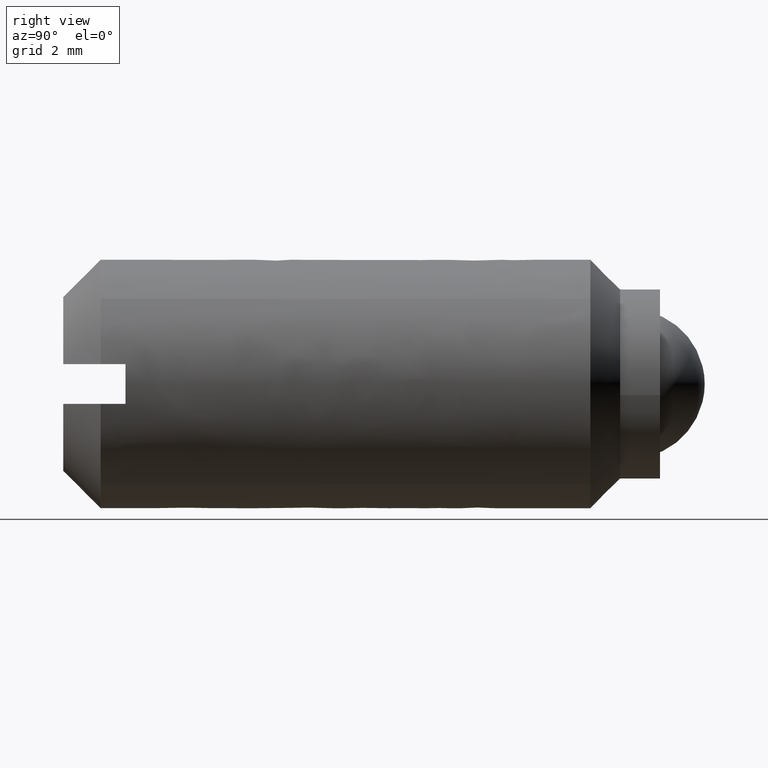
[diagram: clean part render]
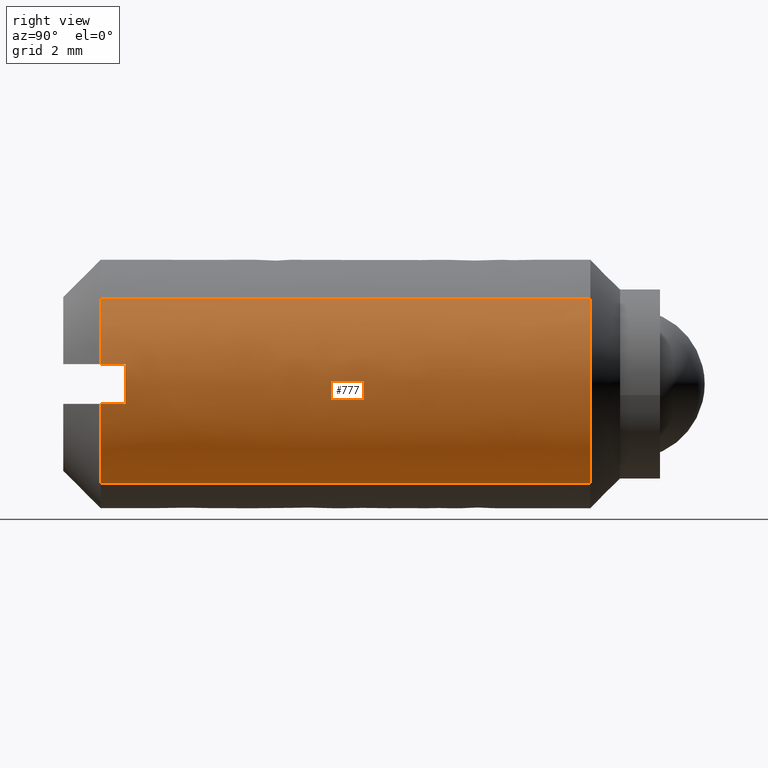
[diagram: same view with one face highlighted and labeled with its STEP entity id]
A machine part, right view. The second image highlights one B-rep face of the part: STEP entity #777.
In plain terms, the highlighted face is a freeform B-spline surface patch.
Its self-contained STEP definition (entity closure, byte-faithful):
#487=CARTESIAN_POINT('',(1.818315486528456,-2.299999999999970,1.715729813068122));
#488=VERTEX_POINT('',#487);
#502=CARTESIAN_POINT('',(1.494303351258331,-2.299999999999954,-2.004259837051412));
#503=VERTEX_POINT('',#502);
#504=CARTESIAN_POINT('',(1.494303351258332,-2.299999999999953,-2.004259837051412));
#505=CARTESIAN_POINT('',(2.500000000000000,-2.300000000000000,-1.254449486241988));
#506=CARTESIAN_POINT('',(2.500000000000000,-2.300000000000000,-8.511014E-016));
#507=CARTESIAN_POINT('',(2.500000000000000,-2.300000000000000,0.993286470697336));
#508=CARTESIAN_POINT('',(1.818315486528456,-2.299999999999971,1.715729813068123));
#516=(BOUNDED_CURVE()B_SPLINE_CURVE(2,(#504,#505,#506,#507,#508),.UNSPECIFIED.,.F.,.U.)B_SPLINE_CURVE_WITH_KNOTS((3,2,3),(0.103121803616288,0.250000000000000,0.370620956215219),.UNSPECIFIED.)CURVE()GEOMETRIC_REPRESENTATION_ITEM()RATIONAL_B_SPLINE_CURVE((0.858039628780873,0.827921489150641,1.0,0.858683759511071,0.853733119474259))REPRESENTATION_ITEM(''));
#517=EDGE_CURVE('',#503,#488,#516,.T.);
#619=CARTESIAN_POINT('',(1.494304036467052,-12.150000000000000,-2.004259374637578));
#620=VERTEX_POINT('',#619);
#621=CARTESIAN_POINT('',(1.494303351258331,-2.299999999999954,-2.004259837051412));
#622=CARTESIAN_POINT('',(1.494304036467052,-12.150000000000000,-2.004259374637578));
#623=QUASI_UNIFORM_CURVE('',1,(#621,#622),.UNSPECIFIED.,.F.,.U.);
#624=EDGE_CURVE('',#503,#620,#623,.T.);
#672=CARTESIAN_POINT('',(1.818315981910234,-12.150000000000000,1.715729391257244));
#673=VERTEX_POINT('',#672);
#689=CARTESIAN_POINT('',(1.818315486528456,-2.299999999999970,1.715729813068122));
#690=CARTESIAN_POINT('',(1.818315981910234,-12.150000000000000,1.715729391257244));
#691=QUASI_UNIFORM_CURVE('',1,(#689,#690),.UNSPECIFIED.,.F.,.U.);
#692=EDGE_CURVE('',#488,#673,#691,.T.);
#697=CARTESIAN_POINT('',(1.494304054914435,-2.053749999999999,-2.004259312430972));
#698=CARTESIAN_POINT('',(3.498563367345406,-2.053749999999998,-0.509955257516537));
#699=CARTESIAN_POINT('',(2.004259312430972,-2.053749999999999,1.494304054914434));
#700=CARTESIAN_POINT('',(1.917700511125733,-2.053749999999999,1.610402437314139));
#701=CARTESIAN_POINT('',(1.818315436100052,-2.053750000000000,1.715729866511703));
#702=CARTESIAN_POINT('',(1.494304054914435,-12.402406250000000,-2.004259312430972));
#703=CARTESIAN_POINT('',(3.498563367345406,-12.402406250000002,-0.509955257516537));
#704=CARTESIAN_POINT('',(2.004259312430972,-12.402406250000000,1.494304054914434));
#705=CARTESIAN_POINT('',(1.917700511125733,-12.402406250000006,1.610402437314139));
#706=CARTESIAN_POINT('',(1.818315436100052,-12.402406250000002,1.715729866511703));
#714=(BOUNDED_SURFACE()B_SPLINE_SURFACE(2,1,((#697,#702),(#698,#703),(#699,#704),(#700,#705),(#701,#706)),.UNSPECIFIED.,.F.,.F.,.U.)B_SPLINE_SURFACE_WITH_KNOTS((3,2,3),(2,2),(0.0,4.142135623730948,4.473506473629424),(0.0,10.348656249999999),.UNSPECIFIED.)GEOMETRIC_REPRESENTATION_ITEM()RATIONAL_B_SPLINE_SURFACE(((1.0,1.0),(0.707106781186548,0.707106781186548),(1.0,1.0),(0.976568542494924,0.976568542494924),(0.956886118190660,0.956886118190660)))REPRESENTATION_ITEM('')SURFACE());
#715=ORIENTED_EDGE('',*,*,#517,.T.);
#716=ORIENTED_EDGE('',*,*,#692,.T.);
#717=CARTESIAN_POINT('',(2.467793000000000,-12.150000000000000,0.399999999999991));
#718=VERTEX_POINT('',#717);
#719=CARTESIAN_POINT('',(2.467793000000000,-12.150000000000000,0.399999999999991));
#720=CARTESIAN_POINT('',(2.345002795860268,-12.149999999999999,1.157550982614433));
#721=CARTESIAN_POINT('',(1.818315981910233,-12.149999999999999,1.715729391257244));
#729=(BOUNDED_CURVE()B_SPLINE_CURVE(2,(#719,#720,#721),.UNSPECIFIED.,.F.,.U.)B_SPLINE_CURVE_WITH_KNOTS((3,3),(0.0,0.212803628645489),.UNSPECIFIED.)CURVE()GEOMETRIC_REPRESENTATION_ITEM()RATIONAL_B_SPLINE_CURVE((1.0,0.898525571034351,0.883427648863178))REPRESENTATION_ITEM(''));
#730=EDGE_CURVE('',#718,#673,#729,.T.);
#731=ORIENTED_EDGE('',*,*,#730,.F.);
#732=CARTESIAN_POINT('',(2.467793000000000,-11.650000000000000,0.399999999999991));
#733=VERTEX_POINT('',#732);
#734=CARTESIAN_POINT('',(2.467793000000000,-11.650000000000000,0.399999999999991));
#735=CARTESIAN_POINT('',(2.467793000000000,-12.150000000000000,0.399999999999991));
#736=QUASI_UNIFORM_CURVE('',1,(#734,#735),.UNSPECIFIED.,.F.,.U.);
#737=EDGE_CURVE('',#733,#718,#736,.T.);
#738=ORIENTED_EDGE('',*,*,#737,.F.);
#739=CARTESIAN_POINT('',(2.467793000000000,-11.650000000000000,-0.400000000000000));
#740=VERTEX_POINT('',#739);
#741=CARTESIAN_POINT('',(2.467793000000000,-11.650000000000000,-0.400000000000000));
#742=CARTESIAN_POINT('',(2.532627795534064,-11.650000000000004,-5.800482E-015));
#743=CARTESIAN_POINT('',(2.467793000000000,-11.650000000000000,0.399999999999991));
#751=(BOUNDED_CURVE()B_SPLINE_CURVE(2,(#741,#742,#743),.UNSPECIFIED.,.F.,.U.)CURVE()GEOMETRIC_REPRESENTATION_ITEM()QUASI_UNIFORM_CURVE()RATIONAL_B_SPLINE_CURVE((1.0,0.987117019093134,1.0))REPRESENTATION_ITEM(''));
#752=EDGE_CURVE('',#740,#733,#751,.T.);
#753=ORIENTED_EDGE('',*,*,#752,.F.);
#754=CARTESIAN_POINT('',(2.467793000000000,-12.150000000000000,-0.400000000000000));
#755=VERTEX_POINT('',#754);
#756=CARTESIAN_POINT('',(2.467793000000000,-11.650000000000000,-0.400000000000000));
#757=CARTESIAN_POINT('',(2.467793000000000,-12.150000000000000,-0.400000000000000));
#758=QUASI_UNIFORM_CURVE('',1,(#756,#757),.UNSPECIFIED.,.F.,.U.);
#759=EDGE_CURVE('',#740,#755,#758,.T.);
#760=ORIENTED_EDGE('',*,*,#759,.T.);
#761=CARTESIAN_POINT('',(1.494304036467051,-12.149999999999997,-2.004259374637579));
#762=CARTESIAN_POINT('',(2.305832144477165,-12.149999999999995,-1.399213301305182));
#763=CARTESIAN_POINT('',(2.467793000000000,-12.150000000000000,-0.400000000000000));
#771=(BOUNDED_CURVE()B_SPLINE_CURVE(2,(#761,#762,#763),.UNSPECIFIED.,.F.,.U.)B_SPLINE_CURVE_WITH_KNOTS((3,3),(0.728112247232874,1.0),.UNSPECIFIED.)CURVE()GEOMETRIC_REPRESENTATION_ITEM()RATIONAL_B_SPLINE_CURVE((0.881702426877514,0.870351576299059,1.0))REPRESENTATION_ITEM(''));
#772=EDGE_CURVE('',#620,#755,#771,.T.);
#773=ORIENTED_EDGE('',*,*,#772,.F.);
#774=ORIENTED_EDGE('',*,*,#624,.F.);
#775=EDGE_LOOP('',(#715,#716,#731,#738,#753,#760,#773,#774));
#776=FACE_OUTER_BOUND('',#775,.T.);
#777=ADVANCED_FACE('',(#776),#714,.T.);